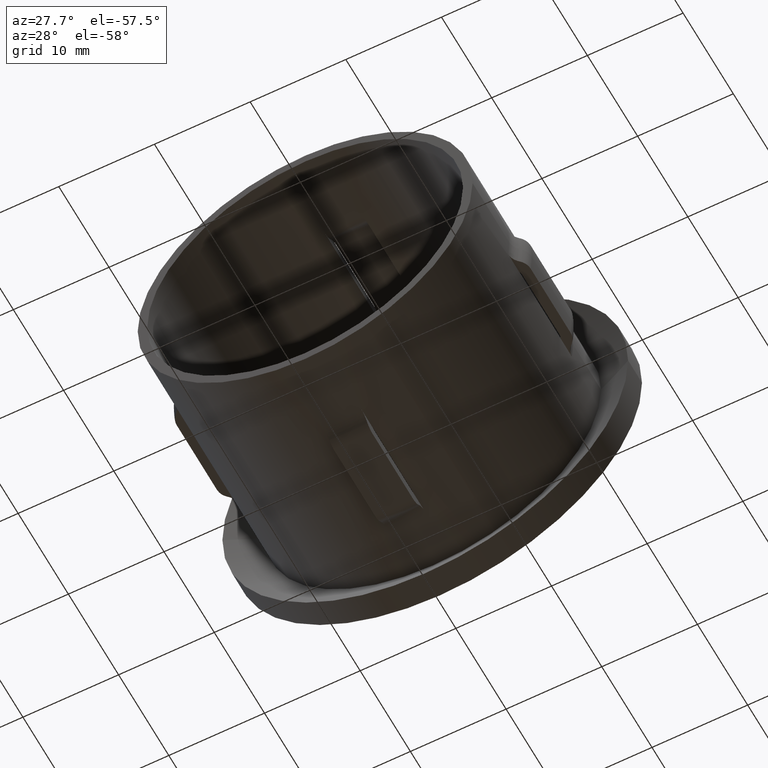
[diagram: clean part render]
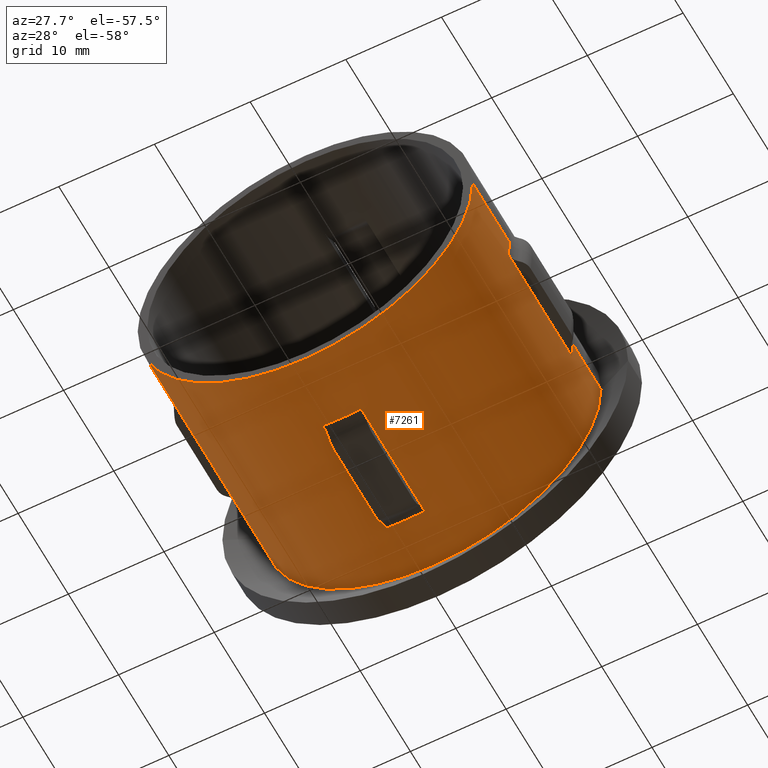
[diagram: same view with one face highlighted and labeled with its STEP entity id]
A machine part, auxiliary view. The second image highlights one B-rep face of the part: STEP entity #7261.
In plain terms, the highlighted cylindrical surface (partial cylindrical patch) has radius 17.5 mm, axis along (-0, -1, -0).
Its self-contained STEP definition (entity closure, byte-faithful):
#6 = DIRECTION ( 'NONE',  ( -2.449293598294745400E-017, -1.000000000000000000, -0.0000000000000000000 ) ) ;
#52 = DIRECTION ( 'NONE',  ( -2.904862207577519400E-015, -1.000000000000000000, -0.0000000000000000000 ) ) ;
#132 = VERTEX_POINT ( 'NONE', #2827 ) ;
#225 = DIRECTION ( 'NONE',  ( -2.904862207577519400E-015, -1.000000000000000000, -0.0000000000000000000 ) ) ;
#290 = CYLINDRICAL_SURFACE ( 'NONE', #10702, 17.50000000000007100 ) ;
#412 = VERTEX_POINT ( 'NONE', #8763 ) ;
#415 = DIRECTION ( 'NONE',  ( -2.449293598294745400E-017, -1.000000000000000000, 0.0000000000000000000 ) ) ;
#430 = VERTEX_POINT ( 'NONE', #11965 ) ;
#444 = DIRECTION ( 'NONE',  ( -2.904862207577519400E-015, -1.000000000000000000, -0.0000000000000000000 ) ) ;
#494 = LINE ( 'NONE', #12942, #2201 ) ;
#565 = ORIENTED_EDGE ( 'NONE', *, *, #5480, .F. ) ;
#581 = EDGE_CURVE ( 'NONE', #3417, #6325, #8952, .T. ) ;
#584 = CARTESIAN_POINT ( 'NONE',  ( -1.999999999999997300, 20.00000000000000000, -17.38533865071380500 ) ) ;
#628 = FACE_OUTER_BOUND ( 'NONE', #13694, .T. ) ;
#663 = DIRECTION ( 'NONE',  ( -2.449293598294745400E-017, -1.000000000000000000, -0.0000000000000000000 ) ) ;
#683 = ORIENTED_EDGE ( 'NONE', *, *, #9481, .F. ) ;
#884 = CARTESIAN_POINT ( 'NONE',  ( 17.49999999999999600, 25.55880433163923400, 0.0000000000000000000 ) ) ;
#1002 = ORIENTED_EDGE ( 'NONE', *, *, #3734, .F. ) ;
#1005 = ORIENTED_EDGE ( 'NONE', *, *, #10625, .F. ) ;
#1027 = DIRECTION ( 'NONE',  ( 1.000000000000000000, -2.973811673103085900E-015, 0.0000000000000000000 ) ) ;
#1062 = ORIENTED_EDGE ( 'NONE', *, *, #6050, .T. ) ;
#1067 = CARTESIAN_POINT ( 'NONE',  ( 0.0000000000000000000, 28.89999999999999500, 0.0000000000000000000 ) ) ;
#1095 = VECTOR ( 'NONE', #12514, 1000.000000000000000 ) ;
#1255 = VECTOR ( 'NONE', #415, 1000.000000000000000 ) ;
#1258 = CARTESIAN_POINT ( 'NONE',  ( 17.38533865071371300, 20.00000000000000000, -2.000000000000006200 ) ) ;
#1269 = LINE ( 'NONE', #7022, #1095 ) ;
#1313 = LINE ( 'NONE', #13392, #4916 ) ;
#1317 = DIRECTION ( 'NONE',  ( 1.000000000000000000, -2.973811673103095000E-015, 0.0000000000000000000 ) ) ;
#1386 = DIRECTION ( 'NONE',  ( -2.904862207577519400E-015, -1.000000000000000000, -0.0000000000000000000 ) ) ;
#1404 = CARTESIAN_POINT ( 'NONE',  ( 2.000000000000001800, 20.00000000000000000, -17.38533865071378400 ) ) ;
#1440 = DIRECTION ( 'NONE',  ( -2.449293598294745400E-017, -1.000000000000000000, 0.0000000000000000000 ) ) ;
#1473 = VECTOR ( 'NONE', #1440, 1000.000000000000000 ) ;
#1574 = CARTESIAN_POINT ( 'NONE',  ( 2.000000000000001800, 20.00000000000000000, -17.38533865071378400 ) ) ;
#1595 = VECTOR ( 'NONE', #7003, 1000.000000000000000 ) ;
#1613 = EDGE_CURVE ( 'NONE', #8529, #4144, #6256, .T. ) ;
#1776 = LINE ( 'NONE', #4742, #7915 ) ;
#1860 = DIRECTION ( 'NONE',  ( 1.000000000000000000, -2.924248145218036900E-015, 0.0000000000000000000 ) ) ;
#1864 = ORIENTED_EDGE ( 'NONE', *, *, #1613, .T. ) ;
#2021 = VERTEX_POINT ( 'NONE', #5603 ) ;
#2031 = CARTESIAN_POINT ( 'NONE',  ( -1.999999999999997800, 7.314718625761423200, -17.38533865071380500 ) ) ;
#2086 = EDGE_CURVE ( 'NONE', #9550, #6305, #1776, .T. ) ;
#2201 = VECTOR ( 'NONE', #9900, 1000.000000000000000 ) ;
#2211 = VECTOR ( 'NONE', #6142, 1000.000000000000000 ) ;
#2360 = LINE ( 'NONE', #6119, #12078 ) ;
#2475 = CARTESIAN_POINT ( 'NONE',  ( -17.38533865071388000, 9.533056394540524900, -2.000000000000005800 ) ) ;
#2497 = EDGE_CURVE ( 'NONE', #12530, #412, #3488, .T. ) ;
#2672 = CARTESIAN_POINT ( 'NONE',  ( 2.000000000000001300, 7.314718625761423200, -17.38533865071378400 ) ) ;
#2674 = CARTESIAN_POINT ( 'NONE',  ( -1.999999999999997800, 9.533056394542097000, -17.38533865071380500 ) ) ;
#2746 = AXIS2_PLACEMENT_3D ( 'NONE', #3896, #10465, #6254 ) ;
#2827 = CARTESIAN_POINT ( 'NONE',  ( 17.38533865071371300, 17.78166223122108000, -2.000000000000006200 ) ) ;
#2833 = EDGE_CURVE ( 'NONE', #6650, #4734, #9172, .T. ) ;
#2966 = ORIENTED_EDGE ( 'NONE', *, *, #7447, .F. ) ;
#3098 = EDGE_CURVE ( 'NONE', #6325, #7175, #13778, .T. ) ;
#3124 = CARTESIAN_POINT ( 'NONE',  ( -6.270226810395241300E-014, 7.314718625761475600, 0.0000000000000000000 ) ) ;
#3135 = LINE ( 'NONE', #6971, #1255 ) ;
#3208 = DIRECTION ( 'NONE',  ( -2.904862207577519400E-015, -1.000000000000000000, -0.0000000000000000000 ) ) ;
#3261 = VERTEX_POINT ( 'NONE', #13981 ) ;
#3358 = CARTESIAN_POINT ( 'NONE',  ( 17.38533865071371300, 7.314718625761423200, -2.000000000000006200 ) ) ;
#3391 = ORIENTED_EDGE ( 'NONE', *, *, #12274, .T. ) ;
#3417 = VERTEX_POINT ( 'NONE', #11904 ) ;
#3419 = DIRECTION ( 'NONE',  ( -2.904862207577519400E-015, -1.000000000000000000, -0.0000000000000000000 ) ) ;
#3488 = CIRCLE ( 'NONE', #8936, 17.50000000000005700 ) ;
#3646 = EDGE_CURVE ( 'NONE', #3261, #6650, #1269, .T. ) ;
#3734 = EDGE_CURVE ( 'NONE', #13333, #6938, #13358, .T. ) ;
#3896 = CARTESIAN_POINT ( 'NONE',  ( -8.395051779899014400E-014, 5.204170427930421300E-014, 0.0000000000000000000 ) ) ;
#4144 = VERTEX_POINT ( 'NONE', #884 ) ;
#4225 = CARTESIAN_POINT ( 'NONE',  ( 17.49999999999999600, 20.00000000000000000, 0.0000000000000000000 ) ) ;
#4227 = ORIENTED_EDGE ( 'NONE', *, *, #5295, .T. ) ;
#4247 = CARTESIAN_POINT ( 'NONE',  ( -6.270226810395241300E-014, 7.314718625761475600, 0.0000000000000000000 ) ) ;
#4320 = EDGE_CURVE ( 'NONE', #13350, #8588, #13341, .T. ) ;
#4330 = EDGE_CURVE ( 'NONE', #7175, #6938, #12846, .T. ) ;
#4373 = VECTOR ( 'NONE', #6827, 1000.000000000000000 ) ;
#4447 = VERTEX_POINT ( 'NONE', #2674 ) ;
#4542 = LINE ( 'NONE', #1404, #9827 ) ;
#4734 = VERTEX_POINT ( 'NONE', #2475 ) ;
#4742 = CARTESIAN_POINT ( 'NONE',  ( -1.999999999999997300, 20.00000000000000000, -17.38533865071380500 ) ) ;
#4801 = CARTESIAN_POINT ( 'NONE',  ( -1.999999999999997300, 20.00000000000000000, -17.38533865071380500 ) ) ;
#4845 = DIRECTION ( 'NONE',  ( -2.904862207577519400E-015, -1.000000000000000000, -0.0000000000000000000 ) ) ;
#4873 = AXIS2_PLACEMENT_3D ( 'NONE', #8943, #225, #1317 ) ;
#4916 = VECTOR ( 'NONE', #4845, 1000.000000000000000 ) ;
#5027 = EDGE_CURVE ( 'NONE', #4447, #8376, #8666, .T. ) ;
#5091 = ORIENTED_EDGE ( 'NONE', *, *, #2497, .T. ) ;
#5169 = DIRECTION ( 'NONE',  ( -2.904862207577519400E-015, -1.000000000000000000, -0.0000000000000000000 ) ) ;
#5295 = EDGE_CURVE ( 'NONE', #8376, #8588, #12765, .T. ) ;
#5480 = EDGE_CURVE ( 'NONE', #8673, #12332, #8840, .T. ) ;
#5596 = AXIS2_PLACEMENT_3D ( 'NONE', #4247, #12849, #1860 ) ;
#5603 = CARTESIAN_POINT ( 'NONE',  ( -17.50000000000004300, 20.00000000000010300, 2.143131898507874200E-015 ) ) ;
#5758 = ORIENTED_EDGE ( 'NONE', *, *, #7495, .T. ) ;
#5805 = VERTEX_POINT ( 'NONE', #9616 ) ;
#5943 = EDGE_CURVE ( 'NONE', #4734, #412, #2360, .T. ) ;
#6050 = EDGE_CURVE ( 'NONE', #8673, #132, #494, .T. ) ;
#6074 = EDGE_CURVE ( 'NONE', #2021, #3261, #8824, .T. ) ;
#6119 = CARTESIAN_POINT ( 'NONE',  ( -17.38533865071388000, 20.00000000000000000, -2.000000000000005800 ) ) ;
#6142 = DIRECTION ( 'NONE',  ( -2.449293598294745400E-017, -1.000000000000000000, 0.0000000000000000000 ) ) ;
#6181 = ORIENTED_EDGE ( 'NONE', *, *, #12080, .T. ) ;
#6185 = ORIENTED_EDGE ( 'NONE', *, *, #2086, .T. ) ;
#6254 = DIRECTION ( 'NONE',  ( 1.000000000000000000, -2.904862207577519400E-015, 0.0000000000000000000 ) ) ;
#6256 = CIRCLE ( 'NONE', #7252, 17.50000000000000400 ) ;
#6305 = VERTEX_POINT ( 'NONE', #9578 ) ;
#6325 = VERTEX_POINT ( 'NONE', #3358 ) ;
#6331 = VECTOR ( 'NONE', #6, 1000.000000000000000 ) ;
#6406 = DIRECTION ( 'NONE',  ( 1.000000000000000000, -2.924248145218036900E-015, 0.0000000000000000000 ) ) ;
#6524 = CARTESIAN_POINT ( 'NONE',  ( -1.999999999999997300, 20.00000000000000000, -17.38533865071380500 ) ) ;
#6650 = VERTEX_POINT ( 'NONE', #9604 ) ;
#6652 = DIRECTION ( 'NONE',  ( 1.000000000000000000, -2.973811673103095000E-015, 0.0000000000000000000 ) ) ;
#6827 = DIRECTION ( 'NONE',  ( -2.449293598294745400E-017, -1.000000000000000000, -0.0000000000000000000 ) ) ;
#6938 = VERTEX_POINT ( 'NONE', #8659 ) ;
#6971 = CARTESIAN_POINT ( 'NONE',  ( 17.38533865071371300, 20.00000000000000000, -2.000000000000006200 ) ) ;
#7003 = DIRECTION ( 'NONE',  ( -2.449293598294745400E-017, -1.000000000000000000, -0.0000000000000000000 ) ) ;
#7022 = CARTESIAN_POINT ( 'NONE',  ( -17.38533865071388000, 20.00000000000000000, -2.000000000000005800 ) ) ;
#7175 = VERTEX_POINT ( 'NONE', #11372 ) ;
#7205 = ORIENTED_EDGE ( 'NONE', *, *, #3646, .F. ) ;
#7252 = AXIS2_PLACEMENT_3D ( 'NONE', #13233, #52, #9875 ) ;
#7261 = ADVANCED_FACE ( 'NONE', ( #628, #11888 ), #290, .T. ) ;
#7419 = DIRECTION ( 'NONE',  ( 1.000000000000000000, -2.973811673103095000E-015, 0.0000000000000000000 ) ) ;
#7447 = EDGE_CURVE ( 'NONE', #8529, #2021, #1313, .T. ) ;
#7495 = EDGE_CURVE ( 'NONE', #6305, #4447, #13404, .T. ) ;
#7915 = VECTOR ( 'NONE', #10108, 1000.000000000000000 ) ;
#8013 = CARTESIAN_POINT ( 'NONE',  ( 17.50000000000007100, 28.89999999999994200, 0.0000000000000000000 ) ) ;
#8201 = ORIENTED_EDGE ( 'NONE', *, *, #581, .T. ) ;
#8256 = VECTOR ( 'NONE', #3208, 1000.000000000000000 ) ;
#8376 = VERTEX_POINT ( 'NONE', #2031 ) ;
#8403 = CARTESIAN_POINT ( 'NONE',  ( -2.585327364743976200E-014, 20.00000000000005300, 0.0000000000000000000 ) ) ;
#8529 = VERTEX_POINT ( 'NONE', #11258 ) ;
#8556 = CARTESIAN_POINT ( 'NONE',  ( 17.50000000000007100, 28.89999999999994200, 0.0000000000000000000 ) ) ;
#8588 = VERTEX_POINT ( 'NONE', #2672 ) ;
#8659 = CARTESIAN_POINT ( 'NONE',  ( 17.50000000000000000, 1.206615646697376900E-015, 0.0000000000000000000 ) ) ;
#8666 = LINE ( 'NONE', #6524, #6331 ) ;
#8673 = VERTEX_POINT ( 'NONE', #11438 ) ;
#8726 = EDGE_CURVE ( 'NONE', #9550, #5805, #13050, .T. ) ;
#8742 = AXIS2_PLACEMENT_3D ( 'NONE', #12675, #11737, #9558 ) ;
#8763 = CARTESIAN_POINT ( 'NONE',  ( -17.38533865071388000, 7.314718625761423200, -2.000000000000005800 ) ) ;
#8824 = CIRCLE ( 'NONE', #12614, 17.50000000000001800 ) ;
#8840 = CIRCLE ( 'NONE', #4873, 17.50000000000001800 ) ;
#8841 = CARTESIAN_POINT ( 'NONE',  ( -2.585327364743976200E-014, 20.00000000000005300, 0.0000000000000000000 ) ) ;
#8918 = CARTESIAN_POINT ( 'NONE',  ( -17.50000000000007100, 28.90000000000004800, 2.143131898507876900E-015 ) ) ;
#8936 = AXIS2_PLACEMENT_3D ( 'NONE', #3124, #13921, #6406 ) ;
#8943 = CARTESIAN_POINT ( 'NONE',  ( -2.585327364743976200E-014, 20.00000000000005300, 0.0000000000000000000 ) ) ;
#8952 = LINE ( 'NONE', #1258, #4373 ) ;
#8968 = EDGE_CURVE ( 'NONE', #430, #13350, #4542, .T. ) ;
#9055 = ORIENTED_EDGE ( 'NONE', *, *, #8726, .F. ) ;
#9172 = LINE ( 'NONE', #12595, #2211 ) ;
#9330 = ORIENTED_EDGE ( 'NONE', *, *, #3098, .T. ) ;
#9481 = EDGE_CURVE ( 'NONE', #5805, #430, #11002, .T. ) ;
#9550 = VERTEX_POINT ( 'NONE', #584 ) ;
#9558 = DIRECTION ( 'NONE',  ( 1.000000000000000000, -2.924248145218036900E-015, 0.0000000000000000000 ) ) ;
#9578 = CARTESIAN_POINT ( 'NONE',  ( -1.999999999999997300, 17.78166223122099500, -17.38533865071380500 ) ) ;
#9604 = CARTESIAN_POINT ( 'NONE',  ( -17.38533865071388000, 17.78166223122093500, -2.000000000000005800 ) ) ;
#9616 = CARTESIAN_POINT ( 'NONE',  ( 2.000000000000002700, 20.00000000000004600, -17.38533865071372700 ) ) ;
#9642 = ORIENTED_EDGE ( 'NONE', *, *, #4330, .T. ) ;
#9827 = VECTOR ( 'NONE', #11240, 1000.000000000000000 ) ;
#9864 = ORIENTED_EDGE ( 'NONE', *, *, #5943, .F. ) ;
#9875 = DIRECTION ( 'NONE',  ( 1.000000000000000000, -2.973811673103097400E-015, 0.0000000000000000000 ) ) ;
#9900 = DIRECTION ( 'NONE',  ( -2.449293598294745400E-017, -1.000000000000000000, -0.0000000000000000000 ) ) ;
#9995 = AXIS2_PLACEMENT_3D ( 'NONE', #8403, #5169, #7419 ) ;
#10108 = DIRECTION ( 'NONE',  ( -2.449293598294745400E-017, -1.000000000000000000, -0.0000000000000000000 ) ) ;
#10192 = ORIENTED_EDGE ( 'NONE', *, *, #8968, .F. ) ;
#10465 = DIRECTION ( 'NONE',  ( -2.904862207577519400E-015, -1.000000000000000000, -0.0000000000000000000 ) ) ;
#10625 = EDGE_CURVE ( 'NONE', #12530, #13333, #12021, .T. ) ;
#10702 = AXIS2_PLACEMENT_3D ( 'NONE', #1067, #10798, #1027 ) ;
#10791 = EDGE_LOOP ( 'NONE', ( #13468, #4227, #12440, #10192, #683, #9055, #6185, #5758 ) ) ;
#10798 = DIRECTION ( 'NONE',  ( -2.904862207577519400E-015, -1.000000000000000000, -0.0000000000000000000 ) ) ;
#10985 = VECTOR ( 'NONE', #444, 1000.000000000000000 ) ;
#11002 = LINE ( 'NONE', #1574, #12700 ) ;
#11168 = CARTESIAN_POINT ( 'NONE',  ( 2.000000000000001800, 20.00000000000000000, -17.38533865071378400 ) ) ;
#11187 = VECTOR ( 'NONE', #1386, 1000.000000000000000 ) ;
#11240 = DIRECTION ( 'NONE',  ( -2.449293598294745400E-017, -1.000000000000000000, 0.0000000000000000000 ) ) ;
#11258 = CARTESIAN_POINT ( 'NONE',  ( -17.50000000000001400, 25.55880433163933700, 2.369691556350132100E-015 ) ) ;
#11372 = CARTESIAN_POINT ( 'NONE',  ( 17.49999999999999600, 7.314718625761424100, 0.0000000000000000000 ) ) ;
#11395 = DIRECTION ( 'NONE',  ( -2.449293598294745400E-017, -1.000000000000000000, -0.0000000000000000000 ) ) ;
#11423 = CARTESIAN_POINT ( 'NONE',  ( -17.50000000000016300, 1.028767929119110500E-013, 2.143131898507882400E-015 ) ) ;
#11438 = CARTESIAN_POINT ( 'NONE',  ( 17.38533865071371300, 20.00000000000000000, -2.000000000000006200 ) ) ;
#11486 = LINE ( 'NONE', #8556, #8256 ) ;
#11737 = DIRECTION ( 'NONE',  ( -2.904862207577519400E-015, -1.000000000000000000, -0.0000000000000000000 ) ) ;
#11888 = FACE_BOUND ( 'NONE', #10791, .T. ) ;
#11904 = CARTESIAN_POINT ( 'NONE',  ( 17.38533865071371300, 9.533056394540361500, -2.000000000000006200 ) ) ;
#11965 = CARTESIAN_POINT ( 'NONE',  ( 2.000000000000001800, 17.78166223122093500, -17.38533865071378400 ) ) ;
#12021 = LINE ( 'NONE', #8918, #11187 ) ;
#12078 = VECTOR ( 'NONE', #663, 1000.000000000000000 ) ;
#12080 = EDGE_CURVE ( 'NONE', #132, #3417, #3135, .T. ) ;
#12106 = ORIENTED_EDGE ( 'NONE', *, *, #2833, .F. ) ;
#12274 = EDGE_CURVE ( 'NONE', #4144, #12332, #11486, .T. ) ;
#12332 = VERTEX_POINT ( 'NONE', #4225 ) ;
#12440 = ORIENTED_EDGE ( 'NONE', *, *, #4320, .F. ) ;
#12478 = CARTESIAN_POINT ( 'NONE',  ( 2.000000000000001300, 9.533056394540524900, -17.38533865071378400 ) ) ;
#12514 = DIRECTION ( 'NONE',  ( -2.449293598294745400E-017, -1.000000000000000000, -0.0000000000000000000 ) ) ;
#12530 = VERTEX_POINT ( 'NONE', #12542 ) ;
#12542 = CARTESIAN_POINT ( 'NONE',  ( -17.50000000000012100, 7.314718625761526200, 2.143131898507879300E-015 ) ) ;
#12595 = CARTESIAN_POINT ( 'NONE',  ( -17.38533865071388000, 20.00000000000000000, -2.000000000000005800 ) ) ;
#12614 = AXIS2_PLACEMENT_3D ( 'NONE', #8841, #3419, #6652 ) ;
#12675 = CARTESIAN_POINT ( 'NONE',  ( -6.270226810395241300E-014, 7.314718625761475600, 0.0000000000000000000 ) ) ;
#12700 = VECTOR ( 'NONE', #11395, 1000.000000000000000 ) ;
#12765 = CIRCLE ( 'NONE', #5596, 17.50000000000005700 ) ;
#12846 = LINE ( 'NONE', #8013, #10985 ) ;
#12849 = DIRECTION ( 'NONE',  ( -2.904862207577519400E-015, -1.000000000000000000, -0.0000000000000000000 ) ) ;
#12942 = CARTESIAN_POINT ( 'NONE',  ( 17.38533865071371300, 20.00000000000000000, -2.000000000000006200 ) ) ;
#13050 = CIRCLE ( 'NONE', #9995, 17.50000000000001800 ) ;
#13074 = ORIENTED_EDGE ( 'NONE', *, *, #6074, .F. ) ;
#13233 = CARTESIAN_POINT ( 'NONE',  ( -9.705713025142736400E-015, 25.55880433163928700, 0.0000000000000000000 ) ) ;
#13333 = VERTEX_POINT ( 'NONE', #11423 ) ;
#13341 = LINE ( 'NONE', #11168, #1595 ) ;
#13350 = VERTEX_POINT ( 'NONE', #12478 ) ;
#13358 = CIRCLE ( 'NONE', #2746, 17.50000000000008500 ) ;
#13392 = CARTESIAN_POINT ( 'NONE',  ( -17.50000000000007100, 28.90000000000004800, 2.143131898507876900E-015 ) ) ;
#13404 = LINE ( 'NONE', #4801, #1473 ) ;
#13468 = ORIENTED_EDGE ( 'NONE', *, *, #5027, .T. ) ;
#13694 = EDGE_LOOP ( 'NONE', ( #2966, #1864, #3391, #565, #1062, #6181, #8201, #9330, #9642, #1002, #1005, #5091, #9864, #12106, #7205, #13074 ) ) ;
#13778 = CIRCLE ( 'NONE', #8742, 17.50000000000005700 ) ;
#13921 = DIRECTION ( 'NONE',  ( -2.904862207577519400E-015, -1.000000000000000000, -0.0000000000000000000 ) ) ;
#13981 = CARTESIAN_POINT ( 'NONE',  ( -17.38533865071375200, 20.00000000000010300, -2.000000000000006200 ) ) ;